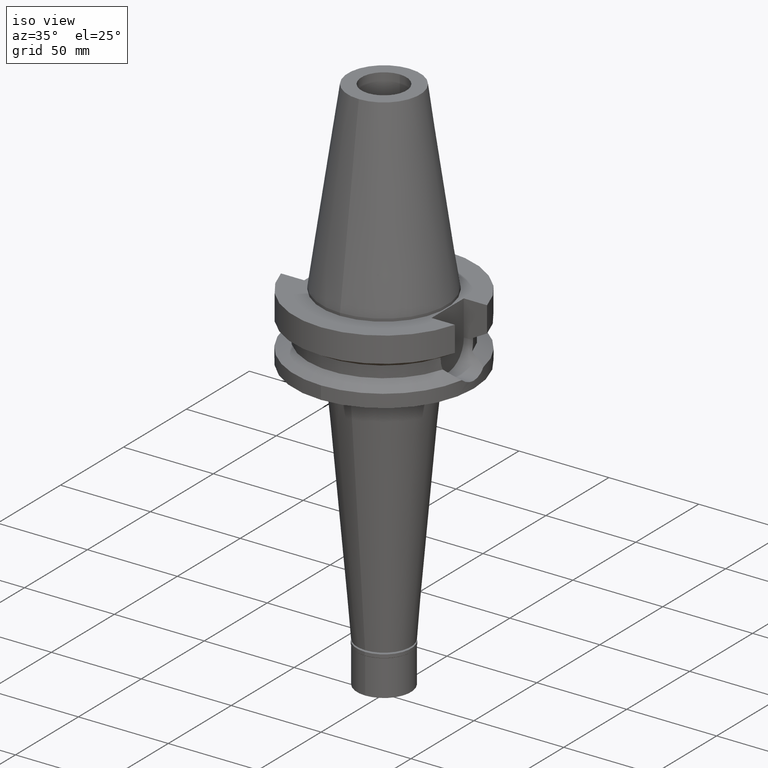
[diagram: clean part render]
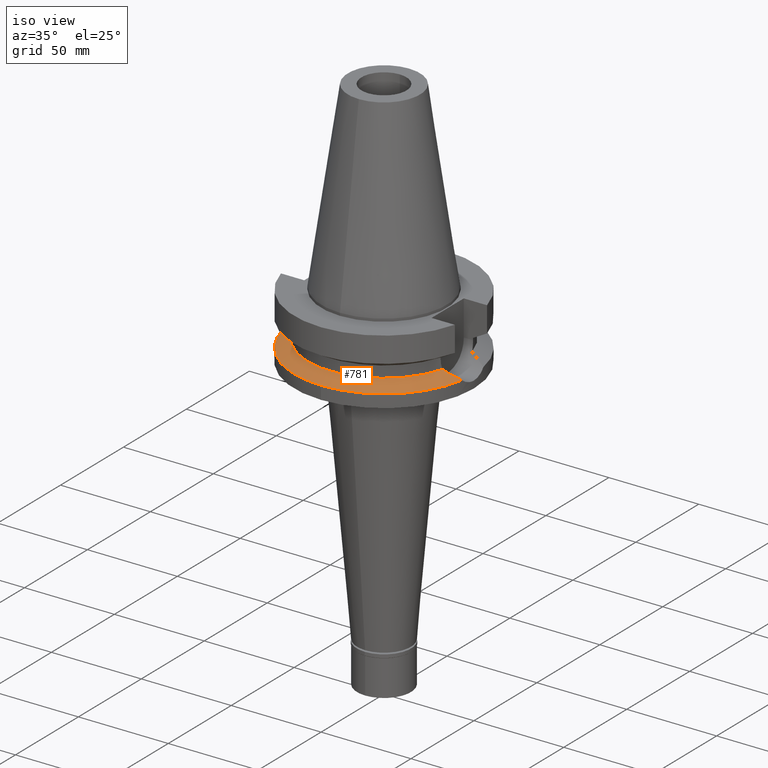
[diagram: same view with one face highlighted and labeled with its STEP entity id]
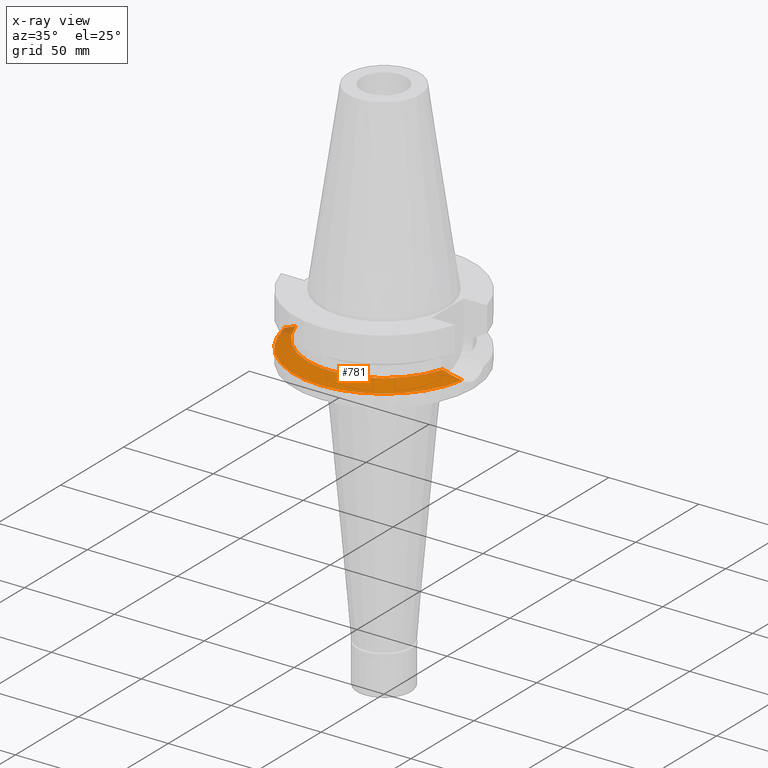
[diagram: x-ray of the same camera — body ghosted, the highlighted face saturated]
A machine part, iso view. The second image highlights one B-rep face of the part: STEP entity #781.
The next image is the same camera in x-ray: the body ghosted, the highlighted face saturated — about 2% of this face is hidden behind the body in this view.
In plain terms, the highlighted conical surface has half-angle 60 deg.
Its self-contained STEP definition (entity closure, byte-faithful):
#40 = DIRECTION ( 'NONE',  ( 0.0000000000000000000, 0.0000000000000000000, -1.000000000000000000 ) ) ;
#111 = B_SPLINE_CURVE_WITH_KNOTS ( 'NONE', 3,
 ( #2151, #923, #3124, #2658, #1187, #2389, #1151, #2186, #948, #2171, #1452, #938, #1949, #2913, #710 ),
 .UNSPECIFIED., .F., .F.,
 ( 4, 2, 2, 1, 1, 1, 2, 2, 4 ),
 ( 0.0000000000000000000, 0.2499999999999850675, 0.3749999999999769629, 0.4374999999999730771, 0.4687499999999717448, 0.4843749999999719669, 0.4921874999999731881, 0.4999999999999744649, 1.000000000000000000 ),
 .UNSPECIFIED. ) ;
#158 = DIRECTION ( 'NONE',  ( 0.0000000000000000000, -1.000000000000000000, 0.0000000000000000000 ) ) ;
#227 = VERTEX_POINT ( 'NONE', #650 ) ;
#327 = CARTESIAN_POINT ( 'NONE',  ( -44.04306642243812320, -10.86789913182984080, -28.05685630065998026 ) ) ;
#374 = CARTESIAN_POINT ( 'NONE',  ( -40.85052569294000335, -11.72538061688000077, -26.40718074535000426 ) ) ;
#385 = EDGE_CURVE ( 'NONE', #417, #1429, #1642, .T. ) ;
#387 = AXIS2_PLACEMENT_3D ( 'NONE', #2211, #932, #158 ) ;
#394 = CARTESIAN_POINT ( 'NONE',  ( -49.26250064874000145, -8.556052234130000045, -30.73730776426999967 ) ) ;
#417 = VERTEX_POINT ( 'NONE', #487 ) ;
#418 = DIRECTION ( 'NONE',  ( 0.9852500129747439050, -0.1711210446826074982, 0.0000000000000000000 ) ) ;
#466 = DIRECTION ( 'NONE',  ( 0.0000000000000000000, 0.0000000000000000000, -1.000000000000000000 ) ) ;
#467 = B_SPLINE_CURVE_WITH_KNOTS ( 'NONE', 3,
 ( #1630, #2097, #2130, #2811, #1371, #2600, #608, #864, #2578, #2831, #2547, #2589, #1576, #327, #1323, #374 ),
 .UNSPECIFIED., .F., .F.,
 ( 4, 2, 2, 1, 1, 1, 1, 2, 2, 4 ),
 ( 0.0000000000000000000, 0.2499999999999464873, 0.3749999999999196199, 0.4374999999999059641, 0.4687499999998992473, 0.4843749999998959721, 0.4921874999998944178, 0.4960937499998935296, 0.4999999999998926414, 1.000000000000000000 ),
 .UNSPECIFIED. ) ;
#487 = CARTESIAN_POINT ( 'NONE',  ( 0.0000000000000000000, -50.00000000000000000, -30.73730776426999967 ) ) ;
#608 = CARTESIAN_POINT ( 'NONE',  ( -45.98852018838466194, -10.13000292988069084, -29.05755489632164767 ) ) ;
#624 = CARTESIAN_POINT ( 'NONE',  ( 49.26250064874000145, -8.556052234130000045, -30.73730776426999967 ) ) ;
#650 = CARTESIAN_POINT ( 'NONE',  ( -40.85052569294000335, -11.72538061688000077, -26.40718074535000426 ) ) ;
#660 = FACE_OUTER_BOUND ( 'NONE', #1017, .T. ) ;
#684 = EDGE_CURVE ( 'NONE', #1507, #417, #1602, .T. ) ;
#710 = CARTESIAN_POINT ( 'NONE',  ( 49.26250064874000145, -8.556052234130000045, -30.73730776426999967 ) ) ;
#711 = EDGE_CURVE ( 'NONE', #991, #1507, #111, .T. ) ;
#726 = DIRECTION ( 'NONE',  ( 0.0000000000000000000, -1.000000000000000000, 0.0000000000000000000 ) ) ;
#781 = ADVANCED_FACE ( 'NONE', ( #660 ), #2067, .T. ) ;
#864 = CARTESIAN_POINT ( 'NONE',  ( -45.67180363306124491, -10.25418904975712131, -28.89468427223397740 ) ) ;
#868 = AXIS2_PLACEMENT_3D ( 'NONE', #2271, #40, #726 ) ;
#910 = AXIS2_PLACEMENT_3D ( 'NONE', #2692, #1511, #2483 ) ;
#923 = CARTESIAN_POINT ( 'NONE',  ( 41.72694207351807449, -11.52185180925891572, -26.86112228768251242 ) ) ;
#932 = DIRECTION ( 'NONE',  ( 0.0000000000000000000, 0.0000000000000000000, 1.000000000000000000 ) ) ;
#938 = CARTESIAN_POINT ( 'NONE',  ( 45.47512654656057407, -10.32941926615439421, -28.79367710800444158 ) ) ;
#948 = CARTESIAN_POINT ( 'NONE',  ( 45.34951768035984543, -10.37696649078324107, -28.72907287450954072 ) ) ;
#991 = VERTEX_POINT ( 'NONE', #2147 ) ;
#1017 = EDGE_LOOP ( 'NONE', ( #3149, #2703, #2046, #2011, #1595 ) ) ;
#1151 = CARTESIAN_POINT ( 'NONE',  ( 44.89772416910376052, -10.54371715933838871, -28.49666930670742104 ) ) ;
#1187 = CARTESIAN_POINT ( 'NONE',  ( 44.08857415545943326, -10.82338623258210042, -28.08014006808129182 ) ) ;
#1323 = CARTESIAN_POINT ( 'NONE',  ( -42.54315868894979502, -11.33230309910504729, -27.28388324638807205 ) ) ;
#1371 = CARTESIAN_POINT ( 'NONE',  ( -46.77597858936179875, -9.802156864529074198, -29.46225715305740778 ) ) ;
#1429 = VERTEX_POINT ( 'NONE', #394 ) ;
#1452 = CARTESIAN_POINT ( 'NONE',  ( 45.45524570550782784, -10.33697696163021007, -28.78345198978384190 ) ) ;
#1507 = VERTEX_POINT ( 'NONE', #624 ) ;
#1511 = DIRECTION ( 'NONE',  ( 0.0000000000000000000, 0.0000000000000000000, -1.000000000000000000 ) ) ;
#1576 = CARTESIAN_POINT ( 'NONE',  ( -45.36046125645941629, -10.37291010595073892, -28.73454205970058695 ) ) ;
#1595 = ORIENTED_EDGE ( 'NONE', *, *, #2395, .F. ) ;
#1602 = CIRCLE ( 'NONE', #2618, 50.00000000000000000 ) ;
#1630 = CARTESIAN_POINT ( 'NONE',  ( -49.26250064874000145, -8.556052234130000045, -30.73730776426999967 ) ) ;
#1642 = CIRCLE ( 'NONE', #910, 50.00000000000000000 ) ;
#1949 = CARTESIAN_POINT ( 'NONE',  ( 46.91821060316115677, -9.778926027902295814, -29.53587728179512339 ) ) ;
#1982 = EDGE_CURVE ( 'NONE', #227, #991, #3159, .T. ) ;
#2011 = ORIENTED_EDGE ( 'NONE', *, *, #1982, .F. ) ;
#2046 = ORIENTED_EDGE ( 'NONE', *, *, #711, .F. ) ;
#2067 = CONICAL_SURFACE ( 'NONE', #868, 46.25000000000000000, 1.047197551196400456 ) ;
#2097 = CARTESIAN_POINT ( 'NONE',  ( -48.69892834588971908, -8.879467188586170678, -30.44868083044662299 ) ) ;
#2130 = CARTESIAN_POINT ( 'NONE',  ( -48.09112121485332381, -9.195440825461604462, -30.13728071085590443 ) ) ;
#2147 = CARTESIAN_POINT ( 'NONE',  ( 40.85052569294000335, -11.72538061688000077, -26.40718074535000426 ) ) ;
#2151 = CARTESIAN_POINT ( 'NONE',  ( 40.85052569294000335, -11.72538061688000077, -26.40718074535000426 ) ) ;
#2171 = CARTESIAN_POINT ( 'NONE',  ( 45.41301423139948668, -10.35298168025327037, -28.76173122974983087 ) ) ;
#2186 = CARTESIAN_POINT ( 'NONE',  ( 45.20031368212758593, -10.43277172956137555, -28.65232875707420490 ) ) ;
#2211 = CARTESIAN_POINT ( 'NONE',  ( 0.0000000000000000000, 0.0000000000000000000, -26.40718074535000426 ) ) ;
#2271 = CARTESIAN_POINT ( 'NONE',  ( 0.0000000000000000000, 0.0000000000000000000, -28.57224425480999841 ) ) ;
#2389 = CARTESIAN_POINT ( 'NONE',  ( 44.63119341526747519, -10.63757728547703962, -28.35950464464939103 ) ) ;
#2395 = EDGE_CURVE ( 'NONE', #1429, #227, #467, .T. ) ;
#2425 = CARTESIAN_POINT ( 'NONE',  ( 0.0000000000000000000, 0.0000000000000000000, -30.73730776426999967 ) ) ;
#2483 = DIRECTION ( 'NONE',  ( 0.0000000000000000000, -1.000000000000000000, 0.0000000000000000000 ) ) ;
#2547 = CARTESIAN_POINT ( 'NONE',  ( -45.39647687178666757, -10.35933886467976883, -28.75306862684531595 ) ) ;
#2578 = CARTESIAN_POINT ( 'NONE',  ( -45.51163103627472140, -10.31567471870774888, -28.81230181466815665 ) ) ;
#2589 = CARTESIAN_POINT ( 'NONE',  ( -45.37337908187374325, -10.36804864761855249, -28.74118709415066419 ) ) ;
#2600 = CARTESIAN_POINT ( 'NONE',  ( -46.25377099880533649, -10.02154902279779058, -29.19390481840178708 ) ) ;
#2618 = AXIS2_PLACEMENT_3D ( 'NONE', #2425, #466, #418 ) ;
#2658 = CARTESIAN_POINT ( 'NONE',  ( 43.71408431274011974, -10.94471318829932294, -27.88717978564972100 ) ) ;
#2692 = CARTESIAN_POINT ( 'NONE',  ( 0.0000000000000000000, 0.0000000000000000000, -30.73730776426999967 ) ) ;
#2703 = ORIENTED_EDGE ( 'NONE', *, *, #684, .F. ) ;
#2811 = CARTESIAN_POINT ( 'NONE',  ( -47.11305827601955798, -9.652584205462531486, -29.63535973274128565 ) ) ;
#2831 = CARTESIAN_POINT ( 'NONE',  ( -45.43109115810025145, -10.34626300604848659, -28.77087404449011387 ) ) ;
#2913 = CARTESIAN_POINT ( 'NONE',  ( 48.17326820616148098, -9.181125643574278072, -30.17947016555445572 ) ) ;
#3124 = CARTESIAN_POINT ( 'NONE',  ( 42.55238377604035804, -11.29884912998780244, -27.28790365605183155 ) ) ;
#3149 = ORIENTED_EDGE ( 'NONE', *, *, #385, .F. ) ;
#3159 = CIRCLE ( 'NONE', #387, 42.50000000000000000 ) ;